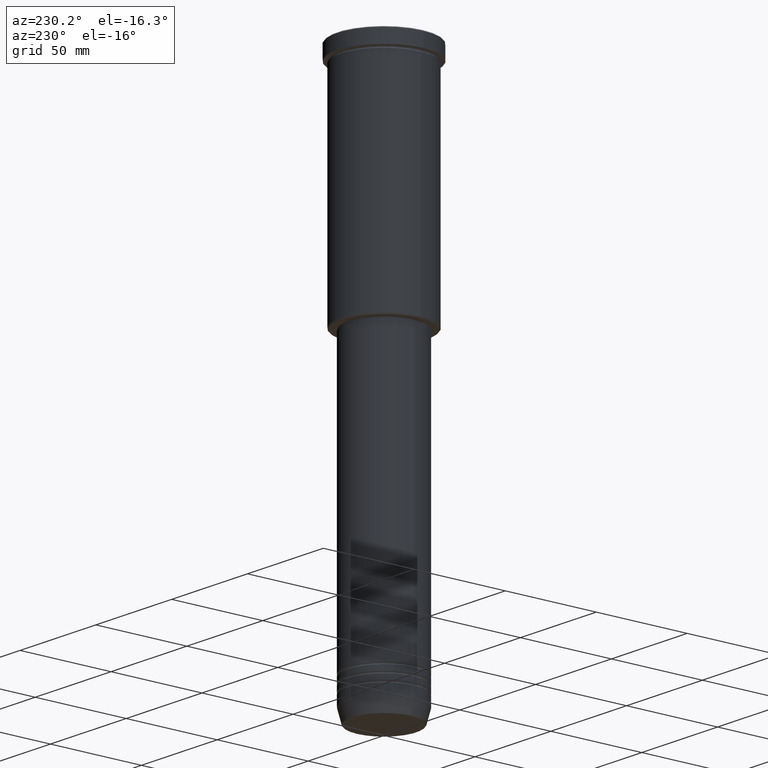
[diagram: clean part render]
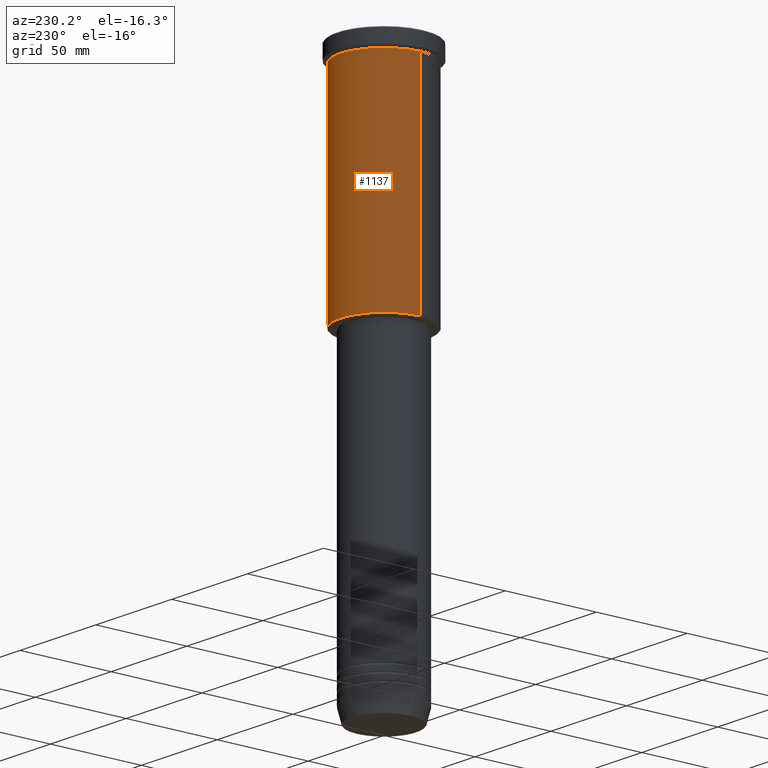
[diagram: same view with one face highlighted and labeled with its STEP entity id]
A machine part, auxiliary view. The second image highlights one B-rep face of the part: STEP entity #1137.
In plain terms, the highlighted cylindrical surface (partial cylindrical patch) has radius 24 mm, axis along (-0, -0, 1).
Its self-contained STEP definition (entity closure, byte-faithful):
#41 = VERTEX_POINT ( 'NONE', #336 ) ;
#47 = VERTEX_POINT ( 'NONE', #700 ) ;
#112 = DIRECTION ( 'NONE',  ( -0.000000000000000000, -0.000000000000000000, 1.000000000000000000 ) ) ;
#125 = VECTOR ( 'NONE', #112, 1000.000000000000000 ) ;
#131 = CARTESIAN_POINT ( 'NONE',  ( 0.000000000000000000, 0.000000000000000000, -125.5000000000000284 ) ) ;
#134 = ORIENTED_EDGE ( 'NONE', *, *, #816, .F. ) ;
#155 = EDGE_LOOP ( 'NONE', ( #847, #274, #134, #433 ) ) ;
#214 = CARTESIAN_POINT ( 'NONE',  ( -24.00000000000000000, 2.939152317953647894E-15, 0.000000000000000000 ) ) ;
#274 = ORIENTED_EDGE ( 'NONE', *, *, #1086, .T. ) ;
#301 = LINE ( 'NONE', #837, #1168 ) ;
#314 = FACE_OUTER_BOUND ( 'NONE', #155, .T. ) ;
#336 = CARTESIAN_POINT ( 'NONE',  ( 24.00000000000000000, 0.000000000000000000, -8.999999999999994671 ) ) ;
#341 = AXIS2_PLACEMENT_3D ( 'NONE', #416, #862, #1048 ) ;
#383 = LINE ( 'NONE', #214, #125 ) ;
#416 = CARTESIAN_POINT ( 'NONE',  ( 0.000000000000000000, 0.000000000000000000, 0.000000000000000000 ) ) ;
#433 = ORIENTED_EDGE ( 'NONE', *, *, #1067, .F. ) ;
#523 = DIRECTION ( 'NONE',  ( -0.000000000000000000, -0.000000000000000000, 1.000000000000000000 ) ) ;
#552 = DIRECTION ( 'NONE',  ( 1.000000000000000000, 0.000000000000000000, 0.000000000000000000 ) ) ;
#557 = CARTESIAN_POINT ( 'NONE',  ( 24.00000000000000000, 0.000000000000000000, -125.5000000000000284 ) ) ;
#560 = VERTEX_POINT ( 'NONE', #643 ) ;
#582 = CYLINDRICAL_SURFACE ( 'NONE', #341, 24.00000000000000000 ) ;
#643 = CARTESIAN_POINT ( 'NONE',  ( -24.00000000000000000, 2.939152317953647894E-15, -125.5000000000000284 ) ) ;
#700 = CARTESIAN_POINT ( 'NONE',  ( -24.00000000000000000, 2.939152317953647894E-15, -8.999999999999994671 ) ) ;
#701 = EDGE_CURVE ( 'NONE', #1020, #560, #809, .T. ) ;
#718 = CARTESIAN_POINT ( 'NONE',  ( 0.000000000000000000, 0.000000000000000000, -8.999999999999994671 ) ) ;
#790 = AXIS2_PLACEMENT_3D ( 'NONE', #131, #523, #1130 ) ;
#809 = CIRCLE ( 'NONE', #790, 24.00000000000000000 ) ;
#816 = EDGE_CURVE ( 'NONE', #41, #47, #872, .T. ) ;
#837 = CARTESIAN_POINT ( 'NONE',  ( 24.00000000000000000, 0.000000000000000000, 0.000000000000000000 ) ) ;
#847 = ORIENTED_EDGE ( 'NONE', *, *, #701, .T. ) ;
#862 = DIRECTION ( 'NONE',  ( -0.000000000000000000, -0.000000000000000000, 1.000000000000000000 ) ) ;
#872 = CIRCLE ( 'NONE', #1096, 24.00000000000000000 ) ;
#934 = DIRECTION ( 'NONE',  ( -0.000000000000000000, -0.000000000000000000, 1.000000000000000000 ) ) ;
#1020 = VERTEX_POINT ( 'NONE', #557 ) ;
#1048 = DIRECTION ( 'NONE',  ( 1.000000000000000000, 0.000000000000000000, 0.000000000000000000 ) ) ;
#1067 = EDGE_CURVE ( 'NONE', #1020, #41, #301, .T. ) ;
#1086 = EDGE_CURVE ( 'NONE', #560, #47, #383, .T. ) ;
#1096 = AXIS2_PLACEMENT_3D ( 'NONE', #718, #1163, #552 ) ;
#1130 = DIRECTION ( 'NONE',  ( -1.000000000000000000, 0.000000000000000000, 0.000000000000000000 ) ) ;
#1137 = ADVANCED_FACE ( 'NONE', ( #314 ), #582, .T. ) ;
#1163 = DIRECTION ( 'NONE',  ( -0.000000000000000000, -0.000000000000000000, 1.000000000000000000 ) ) ;
#1168 = VECTOR ( 'NONE', #934, 1000.000000000000000 ) ;